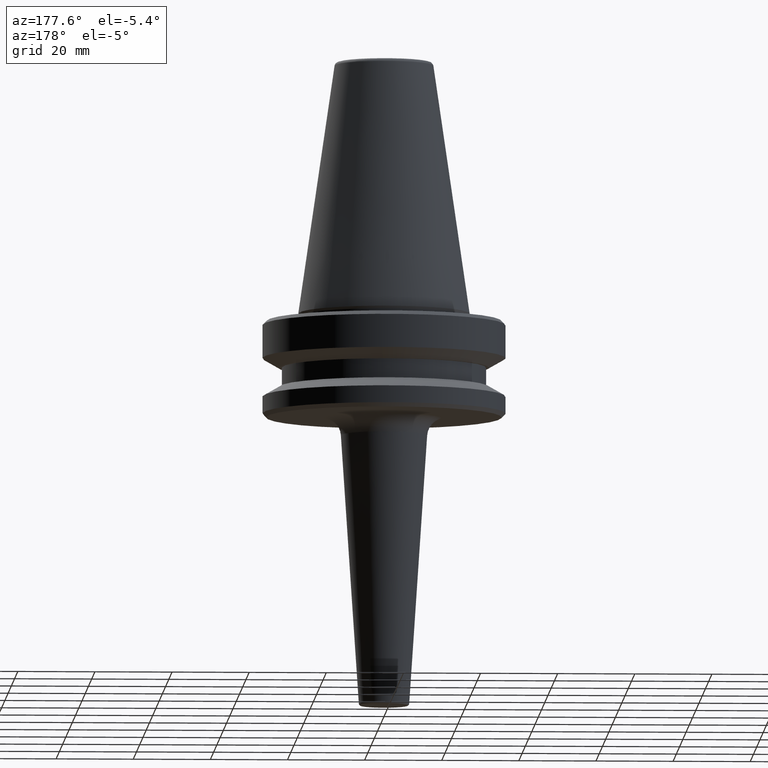
[diagram: clean part render]
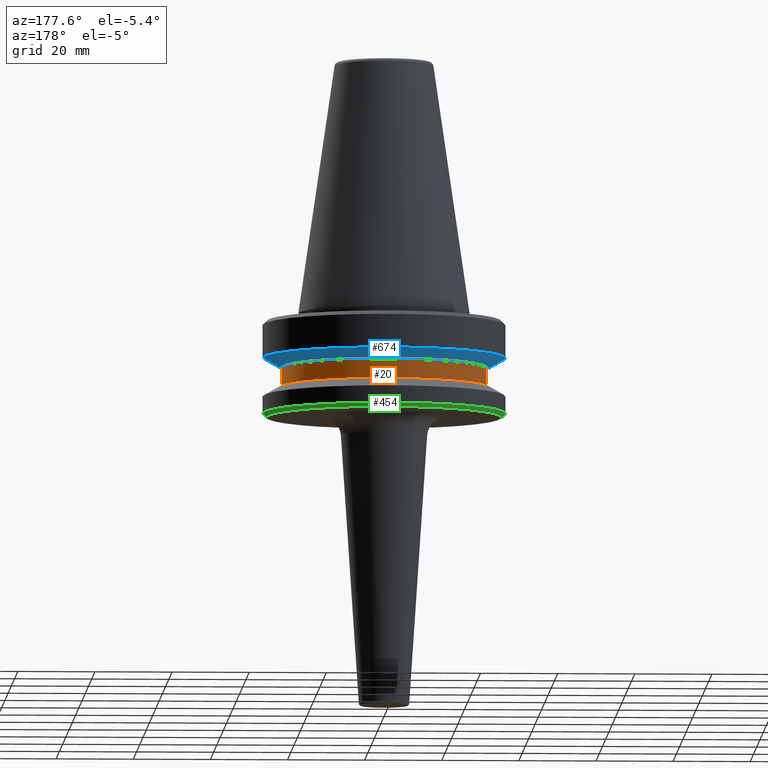
[diagram: same view with three faces highlighted in distinct colors, each labeled with its STEP entity id]
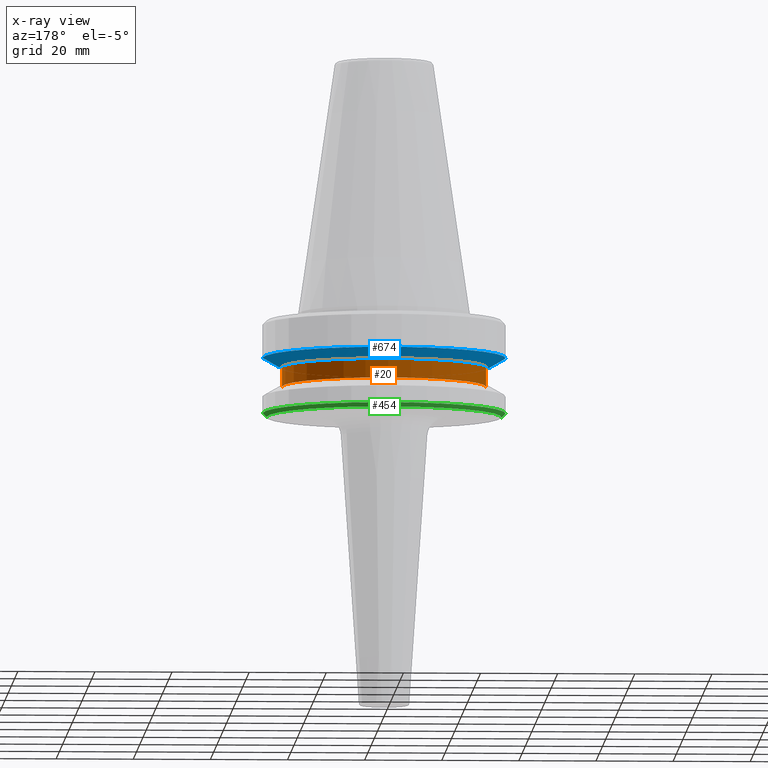
[diagram: x-ray of the same camera — body ghosted, the three highlighted faces saturated]
A machine part, auxiliary view with three faces highlighted in distinct colors.
The next image is the same camera in x-ray (body ghosted, the three faces saturated) — at least one of them is partly hidden behind the body in this view.
Their STEP definitions:

[orange] entity #20 — the highlighted cylindrical surface (partial cylindrical patch) has radius 26.5 mm, axis along (-0, -0, 1).
#2 = CARTESIAN_POINT ( 'NONE',  ( -26.50000000000019200, 3.245314017740509400E-015, 6.357346922996331500 ) ) ;
#19 = VERTEX_POINT ( 'NONE', #189 ) ;
#20 = ADVANCED_FACE ( 'NONE', ( #729 ), #702, .T. ) ;
#36 = CARTESIAN_POINT ( 'NONE',  ( -26.50000000000019200, 3.245314017740509400E-015, -84.50000000000068200 ) ) ;
#96 = CARTESIAN_POINT ( 'NONE',  ( 0.0000000000000000000, 0.0000000000000000000, 6.357346922996331500 ) ) ;
#106 = CARTESIAN_POINT ( 'NONE',  ( 26.50000000000019200, 0.0000000000000000000, -84.50000000000068200 ) ) ;
#115 = ORIENTED_EDGE ( 'NONE', *, *, #450, .T. ) ;
#147 = AXIS2_PLACEMENT_3D ( 'NONE', #213, #687, #770 ) ;
#156 = EDGE_CURVE ( 'NONE', #694, #19, #1032, .T. ) ;
#172 = CARTESIAN_POINT ( 'NONE',  ( 26.50000000000019200, 0.0000000000000000000, 6.357346922996331500 ) ) ;
#189 = CARTESIAN_POINT ( 'NONE',  ( 26.50000000000019200, 0.0000000000000000000, -79.50000000000012800 ) ) ;
#197 = VERTEX_POINT ( 'NONE', #36 ) ;
#213 = CARTESIAN_POINT ( 'NONE',  ( 0.0000000000000000000, 0.0000000000000000000, -79.50000000000012800 ) ) ;
#285 = VERTEX_POINT ( 'NONE', #653 ) ;
#335 = EDGE_CURVE ( 'NONE', #19, #285, #502, .T. ) ;
#367 = EDGE_LOOP ( 'NONE', ( #535, #115, #868, #485 ) ) ;
#369 = DIRECTION ( 'NONE',  ( -0.0000000000000000000, -0.0000000000000000000, 1.000000000000000000 ) ) ;
#380 = AXIS2_PLACEMENT_3D ( 'NONE', #467, #369, #756 ) ;
#408 = VECTOR ( 'NONE', #967, 1000.000000000000000 ) ;
#450 = EDGE_CURVE ( 'NONE', #197, #285, #1038, .T. ) ;
#464 = DIRECTION ( 'NONE',  ( 1.000000000000000000, 0.0000000000000000000, 0.0000000000000000000 ) ) ;
#467 = CARTESIAN_POINT ( 'NONE',  ( 0.0000000000000000000, 0.0000000000000000000, -84.50000000000068200 ) ) ;
#485 = ORIENTED_EDGE ( 'NONE', *, *, #156, .F. ) ;
#502 = CIRCLE ( 'NONE', #147, 26.50000000000019200 ) ;
#530 = CIRCLE ( 'NONE', #380, 26.50000000000019200 ) ;
#535 = ORIENTED_EDGE ( 'NONE', *, *, #897, .T. ) ;
#576 = DIRECTION ( 'NONE',  ( -0.0000000000000000000, -0.0000000000000000000, 1.000000000000000000 ) ) ;
#653 = CARTESIAN_POINT ( 'NONE',  ( -26.50000000000019200, 3.245314017740509400E-015, -79.50000000000012800 ) ) ;
#687 = DIRECTION ( 'NONE',  ( -0.0000000000000000000, -0.0000000000000000000, 1.000000000000000000 ) ) ;
#694 = VERTEX_POINT ( 'NONE', #106 ) ;
#702 = CYLINDRICAL_SURFACE ( 'NONE', #956, 26.50000000000019200 ) ;
#729 = FACE_OUTER_BOUND ( 'NONE', #367, .T. ) ;
#756 = DIRECTION ( 'NONE',  ( 1.000000000000000000, 0.0000000000000000000, 0.0000000000000000000 ) ) ;
#770 = DIRECTION ( 'NONE',  ( 1.000000000000000000, 0.0000000000000000000, 0.0000000000000000000 ) ) ;
#822 = VECTOR ( 'NONE', #576, 1000.000000000000000 ) ;
#868 = ORIENTED_EDGE ( 'NONE', *, *, #335, .F. ) ;
#897 = EDGE_CURVE ( 'NONE', #694, #197, #530, .T. ) ;
#956 = AXIS2_PLACEMENT_3D ( 'NONE', #96, #1003, #464 ) ;
#967 = DIRECTION ( 'NONE',  ( -0.0000000000000000000, -0.0000000000000000000, 1.000000000000000000 ) ) ;
#1003 = DIRECTION ( 'NONE',  ( -0.0000000000000000000, -0.0000000000000000000, 1.000000000000000000 ) ) ;
#1032 = LINE ( 'NONE', #172, #408 ) ;
#1038 = LINE ( 'NONE', #2, #822 ) ;

[blue] entity #674 — the highlighted conical surface has half-angle 60 deg.
#43 = CARTESIAN_POINT ( 'NONE',  ( 31.50000000000008500, 0.0000000000000000000, -76.99985799368391800 ) ) ;
#44 = AXIS2_PLACEMENT_3D ( 'NONE', #758, #904, #831 ) ;
#47 = ORIENTED_EDGE ( 'NONE', *, *, #811, .T. ) ;
#85 = VERTEX_POINT ( 'NONE', #474 ) ;
#153 = AXIS2_PLACEMENT_3D ( 'NONE', #221, #714, #900 ) ;
#198 = DIRECTION ( 'NONE',  ( -0.0000000000000000000, -0.0000000000000000000, 1.000000000000000000 ) ) ;
#211 = FACE_OUTER_BOUND ( 'NONE', #755, .T. ) ;
#221 = CARTESIAN_POINT ( 'NONE',  ( 0.0000000000000000000, 0.0000000000000000000, -76.99985799368391800 ) ) ;
#244 = DIRECTION ( 'NONE',  ( -0.8660254037844383700, 1.060575238724906500E-016, 0.5000000000000003300 ) ) ;
#271 = VERTEX_POINT ( 'NONE', #273 ) ;
#273 = CARTESIAN_POINT ( 'NONE',  ( 31.50000000000008500, 0.0000000000000000000, -76.99985799368391800 ) ) ;
#276 = DIRECTION ( 'NONE',  ( 1.000000000000000000, 0.0000000000000000000, 0.0000000000000000000 ) ) ;
#391 = CARTESIAN_POINT ( 'NONE',  ( -27.16962701892322600, 3.592478546794674900E-015, -79.50000000000012800 ) ) ;
#409 = CONICAL_SURFACE ( 'NONE', #920, 31.50000000000008500, 1.047197551196597400 ) ;
#415 = EDGE_CURVE ( 'NONE', #482, #271, #708, .T. ) ;
#420 = CARTESIAN_POINT ( 'NONE',  ( 27.16962701892322600, 0.0000000000000000000, -79.50000000000012800 ) ) ;
#427 = VECTOR ( 'NONE', #244, 1000.000000000000100 ) ;
#474 = CARTESIAN_POINT ( 'NONE',  ( -31.50000000000008500, 3.857637417314172900E-015, -76.99985799368391800 ) ) ;
#482 = VERTEX_POINT ( 'NONE', #420 ) ;
#518 = ORIENTED_EDGE ( 'NONE', *, *, #524, .F. ) ;
#524 = EDGE_CURVE ( 'NONE', #271, #85, #730, .T. ) ;
#543 = ORIENTED_EDGE ( 'NONE', *, *, #891, .T. ) ;
#557 = VERTEX_POINT ( 'NONE', #391 ) ;
#588 = CARTESIAN_POINT ( 'NONE',  ( 0.0000000000000000000, 0.0000000000000000000, -76.99985799368391800 ) ) ;
#627 = LINE ( 'NONE', #862, #427 ) ;
#674 = ADVANCED_FACE ( 'NONE', ( #211 ), #409, .T. ) ;
#708 = LINE ( 'NONE', #43, #841 ) ;
#714 = DIRECTION ( 'NONE',  ( -0.0000000000000000000, -0.0000000000000000000, 1.000000000000000000 ) ) ;
#730 = CIRCLE ( 'NONE', #153, 31.50000000000008500 ) ;
#755 = EDGE_LOOP ( 'NONE', ( #543, #47, #518, #958 ) ) ;
#758 = CARTESIAN_POINT ( 'NONE',  ( 0.0000000000000000000, 0.0000000000000000000, -79.50000000000012800 ) ) ;
#763 = CIRCLE ( 'NONE', #44, 27.16962701892322600 ) ;
#811 = EDGE_CURVE ( 'NONE', #557, #85, #627, .T. ) ;
#831 = DIRECTION ( 'NONE',  ( 1.000000000000000000, 0.0000000000000000000, 0.0000000000000000000 ) ) ;
#841 = VECTOR ( 'NONE', #960, 1000.000000000000100 ) ;
#862 = CARTESIAN_POINT ( 'NONE',  ( -31.50000000000008500, 3.857637417314172900E-015, -76.99985799368391800 ) ) ;
#891 = EDGE_CURVE ( 'NONE', #482, #557, #763, .T. ) ;
#900 = DIRECTION ( 'NONE',  ( 1.000000000000000000, 0.0000000000000000000, 0.0000000000000000000 ) ) ;
#904 = DIRECTION ( 'NONE',  ( -0.0000000000000000000, -0.0000000000000000000, 1.000000000000000000 ) ) ;
#920 = AXIS2_PLACEMENT_3D ( 'NONE', #588, #198, #276 ) ;
#958 = ORIENTED_EDGE ( 'NONE', *, *, #415, .F. ) ;
#960 = DIRECTION ( 'NONE',  ( 0.8660254037844383700, 0.0000000000000000000, 0.5000000000000003300 ) ) ;

[green] entity #454 — the highlighted conical surface has half-angle 45 deg.
#22 = VERTEX_POINT ( 'NONE', #896 ) ;
#107 = CARTESIAN_POINT ( 'NONE',  ( -31.50000000000008500, 3.857637417314172900E-015, -91.40000000000037500 ) ) ;
#108 = DIRECTION ( 'NONE',  ( 1.000000000000000000, 0.0000000000000000000, 0.0000000000000000000 ) ) ;
#116 = EDGE_LOOP ( 'NONE', ( #377, #921, #1037, #540 ) ) ;
#164 = AXIS2_PLACEMENT_3D ( 'NONE', #1009, #840, #922 ) ;
#177 = VECTOR ( 'NONE', #823, 1000.000000000000000 ) ;
#218 = FACE_OUTER_BOUND ( 'NONE', #116, .T. ) ;
#223 = CARTESIAN_POINT ( 'NONE',  ( 30.49999999999241900, 0.0000000000000000000, -92.40000000000803500 ) ) ;
#227 = VERTEX_POINT ( 'NONE', #349 ) ;
#261 = CARTESIAN_POINT ( 'NONE',  ( 0.0000000000000000000, 0.0000000000000000000, -91.40000000000037500 ) ) ;
#330 = DIRECTION ( 'NONE',  ( 1.000000000000000000, 0.0000000000000000000, 0.0000000000000000000 ) ) ;
#349 = CARTESIAN_POINT ( 'NONE',  ( 31.50000000000008500, 0.0000000000000000000, -91.40000000000037500 ) ) ;
#371 = AXIS2_PLACEMENT_3D ( 'NONE', #848, #749, #330 ) ;
#377 = ORIENTED_EDGE ( 'NONE', *, *, #859, .T. ) ;
#432 = LINE ( 'NONE', #470, #1007 ) ;
#454 = ADVANCED_FACE ( 'NONE', ( #218 ), #659, .T. ) ;
#470 = CARTESIAN_POINT ( 'NONE',  ( 31.50000000000008500, 0.0000000000000000000, -91.40000000000037500 ) ) ;
#540 = ORIENTED_EDGE ( 'NONE', *, *, #683, .F. ) ;
#583 = CIRCLE ( 'NONE', #164, 30.49999999999241900 ) ;
#657 = EDGE_CURVE ( 'NONE', #227, #959, #660, .T. ) ;
#659 = CONICAL_SURFACE ( 'NONE', #371, 31.50000000000008500, 0.7853981633974500600 ) ;
#660 = CIRCLE ( 'NONE', #849, 31.50000000000008500 ) ;
#673 = VERTEX_POINT ( 'NONE', #223 ) ;
#683 = EDGE_CURVE ( 'NONE', #673, #227, #432, .T. ) ;
#749 = DIRECTION ( 'NONE',  ( -0.0000000000000000000, -0.0000000000000000000, 1.000000000000000000 ) ) ;
#823 = DIRECTION ( 'NONE',  ( -0.7071067811865487900, 8.659560562354948900E-017, 0.7071067811865463500 ) ) ;
#840 = DIRECTION ( 'NONE',  ( -0.0000000000000000000, -0.0000000000000000000, 1.000000000000000000 ) ) ;
#845 = CARTESIAN_POINT ( 'NONE',  ( -31.50000000000008500, 3.857637417314172900E-015, -91.40000000000037500 ) ) ;
#848 = CARTESIAN_POINT ( 'NONE',  ( 0.0000000000000000000, 0.0000000000000000000, -91.40000000000037500 ) ) ;
#849 = AXIS2_PLACEMENT_3D ( 'NONE', #261, #973, #108 ) ;
#859 = EDGE_CURVE ( 'NONE', #673, #22, #583, .T. ) ;
#896 = CARTESIAN_POINT ( 'NONE',  ( -30.49999999999241900, 3.796405077356336000E-015, -92.40000000000803500 ) ) ;
#921 = ORIENTED_EDGE ( 'NONE', *, *, #964, .T. ) ;
#922 = DIRECTION ( 'NONE',  ( 1.000000000000000000, 0.0000000000000000000, 0.0000000000000000000 ) ) ;
#940 = DIRECTION ( 'NONE',  ( 0.7071067811865487900, 0.0000000000000000000, 0.7071067811865463500 ) ) ;
#959 = VERTEX_POINT ( 'NONE', #107 ) ;
#964 = EDGE_CURVE ( 'NONE', #22, #959, #1025, .T. ) ;
#973 = DIRECTION ( 'NONE',  ( -0.0000000000000000000, -0.0000000000000000000, 1.000000000000000000 ) ) ;
#1007 = VECTOR ( 'NONE', #940, 1000.000000000000000 ) ;
#1009 = CARTESIAN_POINT ( 'NONE',  ( 0.0000000000000000000, 0.0000000000000000000, -92.40000000000803500 ) ) ;
#1025 = LINE ( 'NONE', #845, #177 ) ;
#1037 = ORIENTED_EDGE ( 'NONE', *, *, #657, .F. ) ;